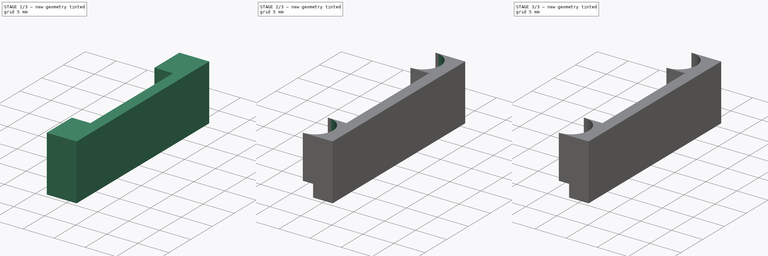
[diagram: build sequence overview — one tinted view per stage of 3, left to right]
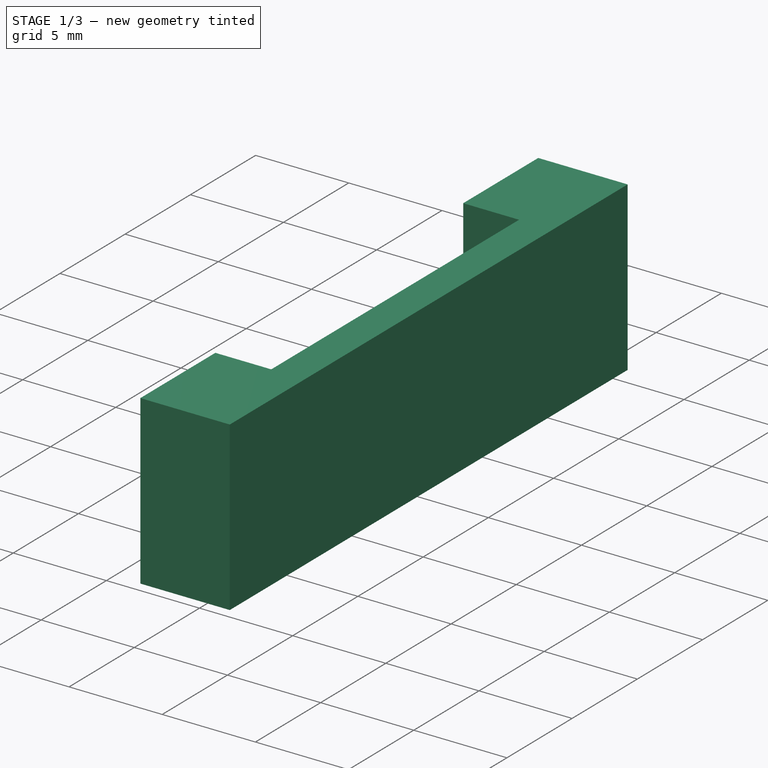
[diagram: stage 1 of 3 — iso view after this stage's code; geometry added in this stage tinted green]
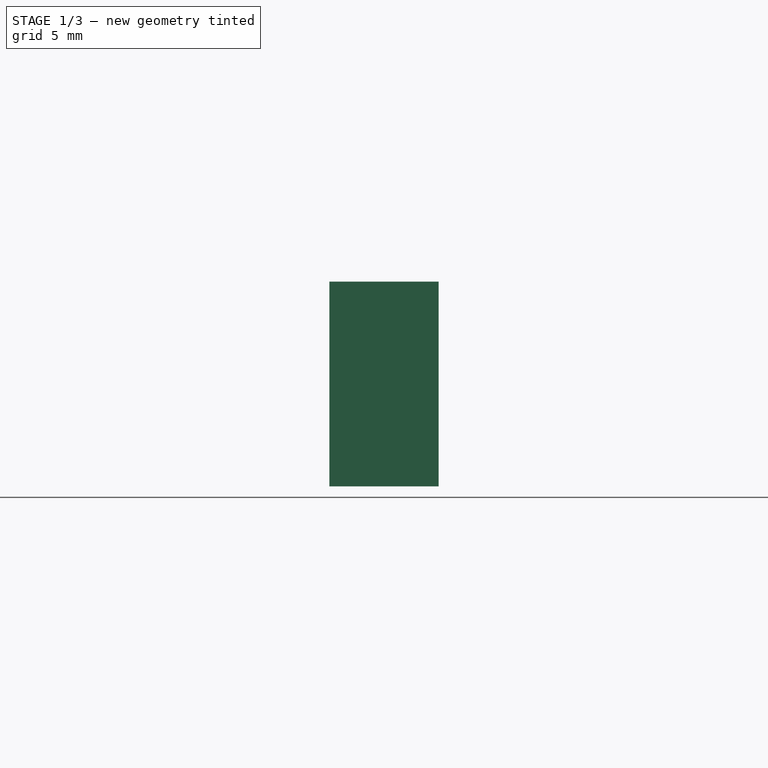
[diagram: stage 1 of 3 — front view after this stage's code; geometry added in this stage tinted green]
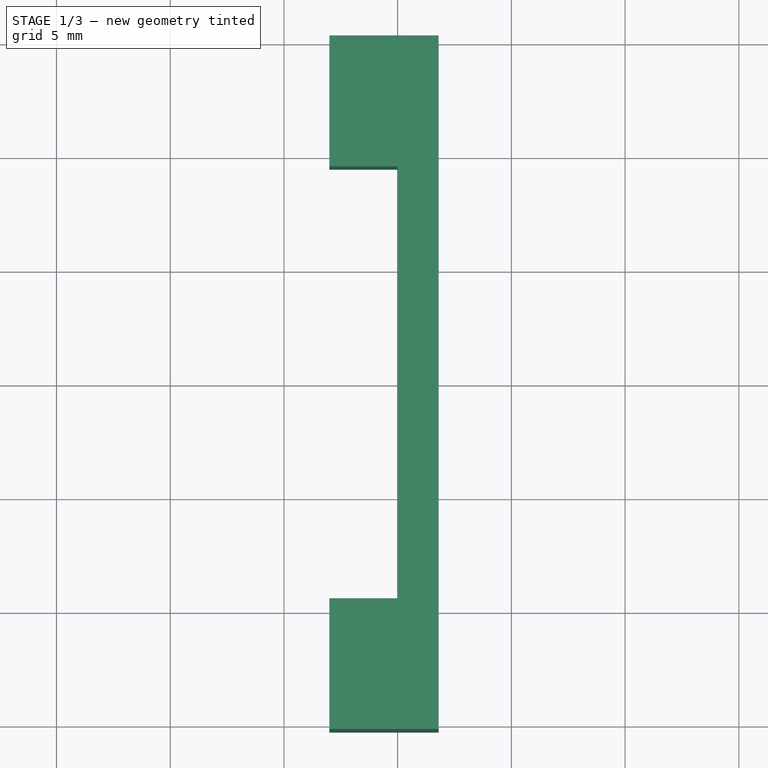
[diagram: stage 1 of 3 — top view after this stage's code; geometry added in this stage tinted green]
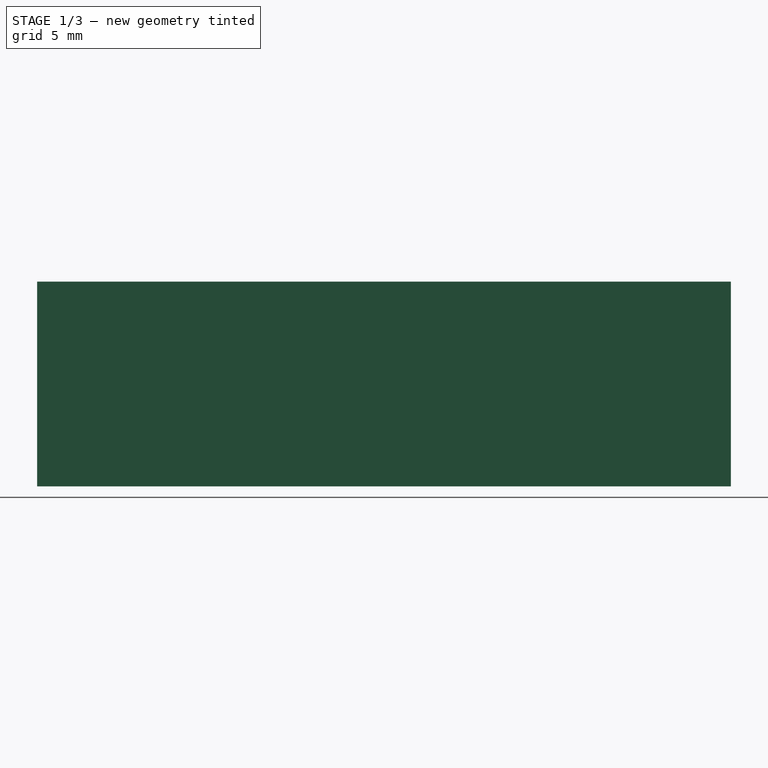
[diagram: stage 1 of 3 — right view after this stage's code; geometry added in this stage tinted green]
FCSTD DOCUMENT  (FreeCAD 0.18R15441 (Git))
Label: XEndstopClip2
License: All rights reserved
LicenseURL: http://en.wikipedia.org/wiki/All_rights_reserved
objects: Sketcher::SketchObject×6, PartDesign::Pad×3, PartDesign::Pocket×3, PartDesign::Plane×2, PartDesign::Body×1, Part::FeaturePython×1, App::Part×1
note: 22 computed .brp shape members not serialized (recipe doc carries the construction recipe); baked Part::Feature solids carry a one-line shape summary decoded from their .brp

FEATURE [Sketcher::SketchObject] Sketch  label="BaseSketch"
  MapMode = 5
  Placement = pos=(0,0,0) rot=(0.57735,0.57735,0.57735;2.0944rad)
  Support = -> [YZ_Plane001]
  sketch-geometry (4):
    g0: LineSegment StartX=-15.25 StartY=0 StartZ=0 EndX=15.25 EndY=0 EndZ=0
    g1: LineSegment StartX=15.25 StartY=0 StartZ=0 EndX=15.25 EndY=9 EndZ=0
    g2: LineSegment StartX=15.25 StartY=9 StartZ=0 EndX=-15.25 EndY=9 EndZ=0
    g3: LineSegment StartX=-15.25 StartY=9 StartZ=0 EndX=-15.25 EndY=0 EndZ=0
  constraints (11):
    c: Coincident(g0,g1)
    c: Coincident(g1,g2)
    c: Coincident(g2,g3)
    c: Coincident(g3,g0)
    c: Horizontal(g2)
    c: Vertical(g1)
    c: Vertical(g3)
    c: PointOnObject(g0,g-1)
    c: Symmetric(g0,g0,g-2)
    c: Distance(g3) = 9
    c: Distance(g2) = 30.5
FEATURE [PartDesign::Pad] Pad  label="BasePad"
  Length = 1.8
  Length2 = 100
  Placement = pos=(0,0,0) rot=(0.57735,0.57735,0.57735;2.0944rad)
  Profile = -> Sketch
  Type = 0
FEATURE [Sketcher::SketchObject] Sketch001  label="NutClipSketch"
  MapMode = 5
  Support = -> [XY_Plane001]
  sketch-geometry (8):
    g0: LineSegment StartX=0 StartY=-15.25 StartZ=0 EndX=-3 EndY=-15.25 EndZ=0
    g1: LineSegment StartX=-3 StartY=-15.25 StartZ=0 EndX=-3 EndY=-9.5 EndZ=0
    g2: LineSegment StartX=-3 StartY=-9.5 StartZ=0 EndX=0 EndY=-9.5 EndZ=0
    g3: LineSegment StartX=0 StartY=-9.5 StartZ=0 EndX=0 EndY=-15.25 EndZ=0
    g4: LineSegment StartX=0 StartY=15.25 StartZ=0 EndX=-3 EndY=15.25 EndZ=0
    g5: LineSegment StartX=-3 StartY=15.25 StartZ=0 EndX=-3 EndY=9.5 EndZ=0
    g6: LineSegment StartX=-3 StartY=9.5 StartZ=0 EndX=0 EndY=9.5 EndZ=0
    g7: LineSegment StartX=0 StartY=9.5 StartZ=0 EndX=0 EndY=15.25 EndZ=0
  constraints (23):
    c: Coincident(g0,g1)
    c: Coincident(g1,g2)
    c: Coincident(g2,g3)
    c: Coincident(g3,g0)
    c: Horizontal(g0)
    c: Horizontal(g2)
    c: Vertical(g1)
    c: Vertical(g3)
    c: PointOnObject(g0,g-2)
    c: Coincident(g4,g5)
    c: Coincident(g5,g6)
    c: Coincident(g6,g7)
    c: Coincident(g7,g4)
    c: Horizontal(g4)
    c: Horizontal(g6)
    c: Vertical(g5)
    c: Vertical(g7)
    c: Symmetric(g6,g2,g-1)
    c: Equal(g5,g1)
    c: Equal(g2,g6)
    c: Distance(g1,g5) = 19
    c: Distance(g5) = 5.75
    c: Distance(g2) = 3
FEATURE [PartDesign::Pad] Pad001  label="NutClipPad"
  BaseFeature = -> Pad
  Length = 9
  Length2 = 100
  Placement = pos=(0,0,0) rot=(0.57735,0.57735,0.57735;2.0944rad)
  Profile = -> Sketch001
  Type = 0
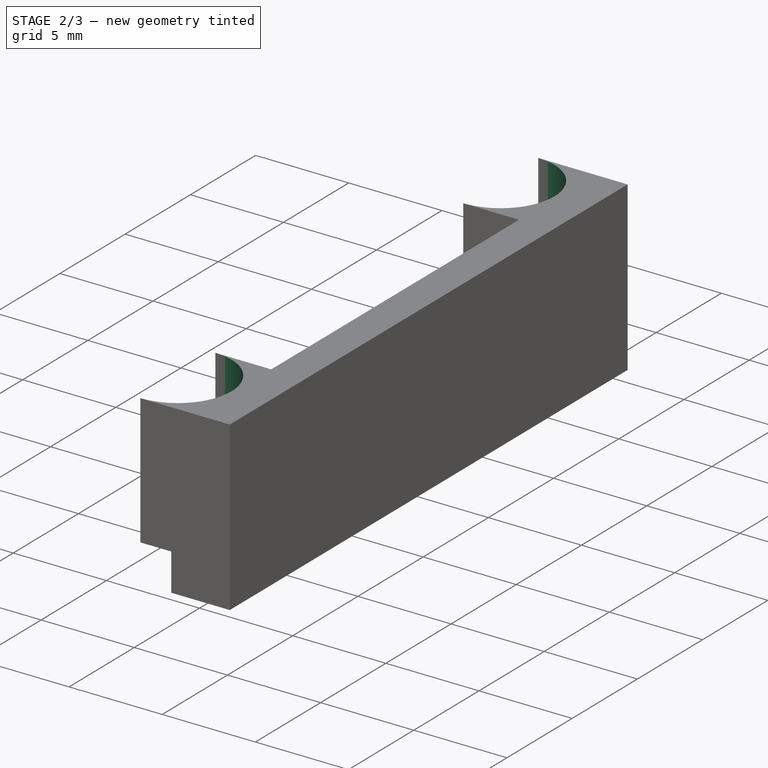
[diagram: stage 2 of 3 — iso view after this stage's code; geometry added in this stage tinted green]
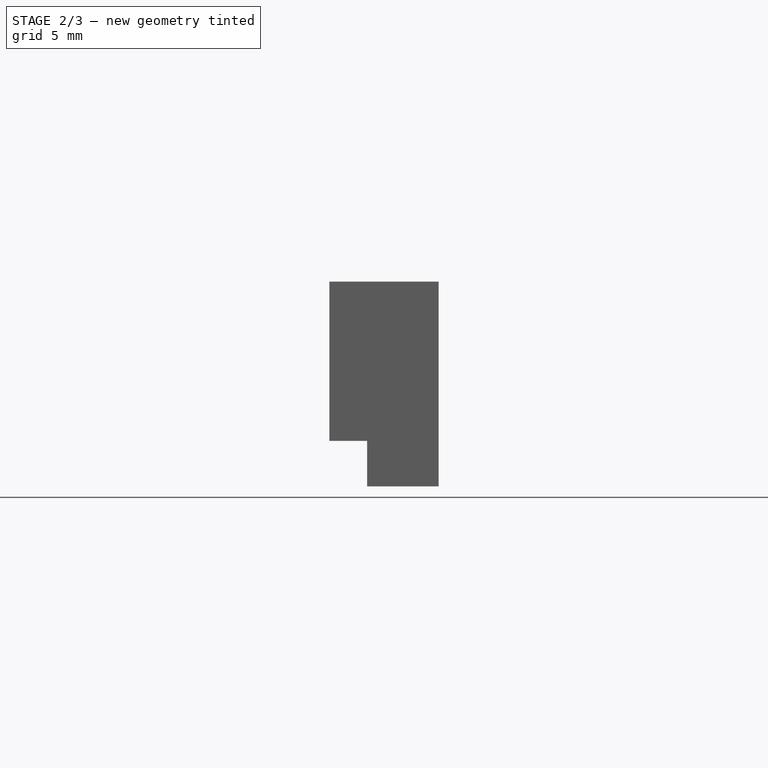
[diagram: stage 2 of 3 — front view after this stage's code; geometry added in this stage tinted green]
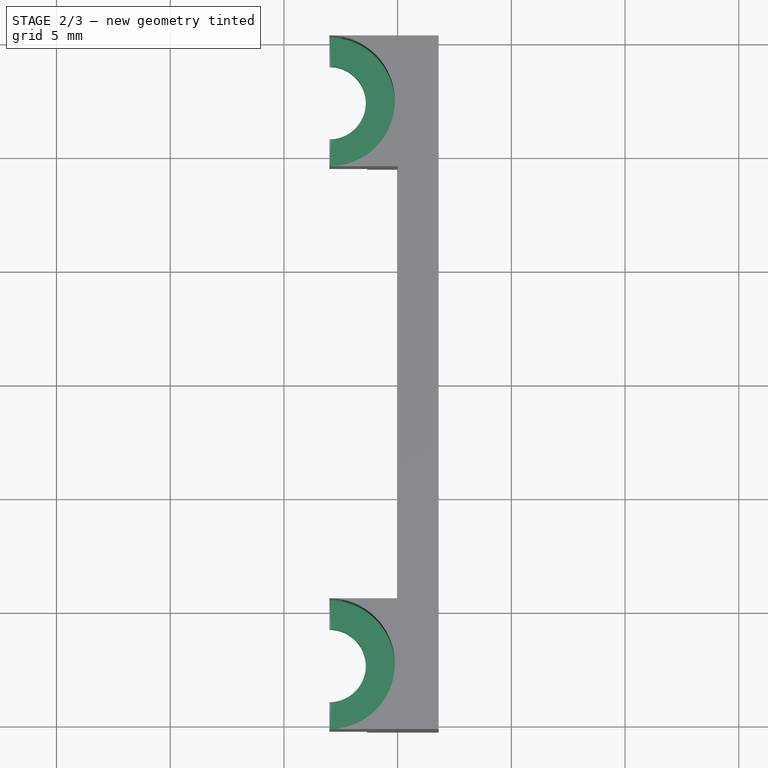
[diagram: stage 2 of 3 — top view after this stage's code; geometry added in this stage tinted green]
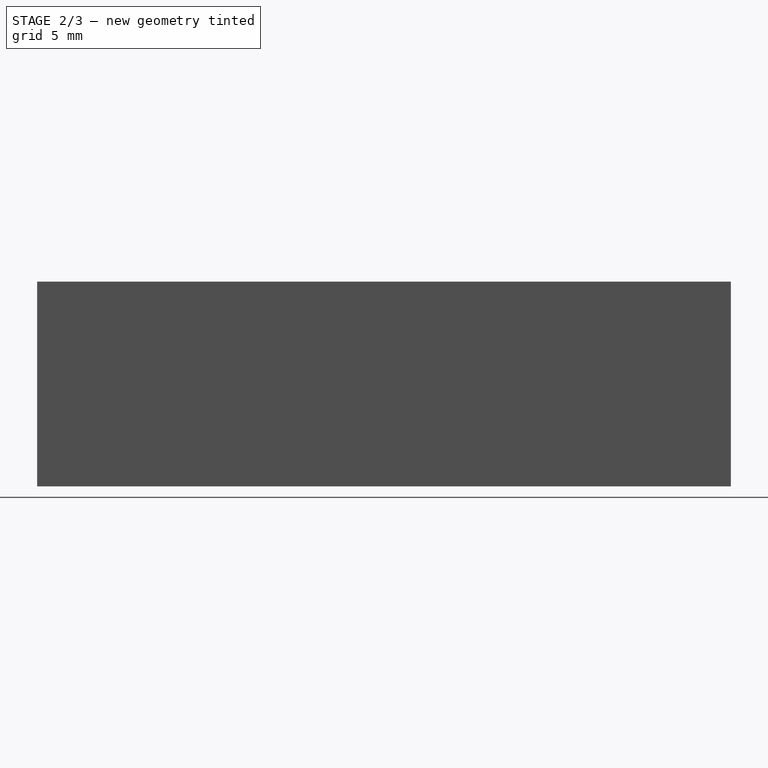
[diagram: stage 2 of 3 — right view after this stage's code; geometry added in this stage tinted green]
FEATURE [PartDesign::Plane] DatumPlane  label="NutClipPlane"
  AttachmentOffset = pos=(0,0,2) rot=(0,0,1;0rad)
  Length = 24.9396
  MapMode = 5
  Placement = pos=(0,0,2) rot=(0,0,1;0rad)
  ResizeMode = 0
  Support = -> [XY_Plane001]
  Width = 35.4396
FEATURE [Sketcher::SketchObject] Sketch002  label="NutCutSketch"
  ExternalGeometry = -> [Sketch001]
  MapMode = 5
  Placement = pos=(0,0,2) rot=(0,0,1;0rad)
  Support = -> [DatumPlane]
  sketch-geometry (16):
    g0: LineSegment StartX=-1.34012 StartY=9.5 StartZ=0 EndX=0.319764 EndY=12.375 EndZ=0
    g1: LineSegment StartX=0.319764 StartY=12.375 StartZ=0 EndX=-1.34012 EndY=15.25 EndZ=0
    g2: LineSegment StartX=-1.34012 StartY=15.25 StartZ=0 EndX=-4.65988 EndY=15.25 EndZ=0
    g3: LineSegment StartX=-4.65988 StartY=15.25 StartZ=0 EndX=-6.31976 EndY=12.375 EndZ=0
    g4: LineSegment StartX=-6.31976 StartY=12.375 StartZ=0 EndX=-4.65988 EndY=9.5 EndZ=0
    g5: LineSegment StartX=-4.65988 StartY=9.5 StartZ=0 EndX=-1.34012 EndY=9.5 EndZ=0
    g6: Circle [constr] CenterX=-3 CenterY=12.375 CenterZ=0 NormalX=0 NormalY=0 NormalZ=1 AngleXU=0 Radius=3.31976
    g7: LineSegment [constr] StartX=-3 StartY=15.25 StartZ=0 EndX=-3 EndY=12.375 EndZ=0
    g8: LineSegment [constr] StartX=-3 StartY=12.375 StartZ=0 EndX=-3 EndY=9.5 EndZ=0
    g9: LineSegment StartX=-1.34012 StartY=-15.25 StartZ=0 EndX=0.319764 EndY=-12.375 EndZ=0
    g10: LineSegment StartX=0.319764 StartY=-12.375 StartZ=0 EndX=-1.34012 EndY=-9.5 EndZ=0
    g11: LineSegment StartX=-1.34012 StartY=-9.5 StartZ=0 EndX=-4.65988 EndY=-9.5 EndZ=0
    g12: LineSegment StartX=-4.65988 StartY=-9.5 StartZ=0 EndX=-6.31976 EndY=-12.375 EndZ=0
    g13: LineSegment StartX=-6.31976 StartY=-12.375 StartZ=0 EndX=-4.65988 EndY=-15.25 EndZ=0
    g14: LineSegment StartX=-4.65988 StartY=-15.25 StartZ=0 EndX=-1.34012 EndY=-15.25 EndZ=0
    g15: Circle [constr] CenterX=-3 CenterY=-12.375 CenterZ=0 NormalX=0 NormalY=0 NormalZ=1 AngleXU=0 Radius=3.31976
  constraints (37):
    c: Coincident(g0,g1)
    c: Coincident(g1,g2)
    c: Coincident(g2,g3)
    c: Coincident(g3,g4)
    c: Coincident(g4,g5)
    c: Coincident(g5,g0)
    c: Equal(g0, g1-g5) x5
    c: PointOnObject(g0,g6)
    c: PointOnObject(g1,g6)
    c: PointOnObject(g2,g6)
    c: PointOnObject(g3,g6)
    c: PointOnObject(g4,g6)
    c: PointOnObject(g5,g6)
    c: Coincident(g7,g6)
    c: Coincident(g8,g6)
    c: Coincident(g8,g-3)
    c: Equal(g8,g7)
    c: Horizontal(g2)
    c: Coincident(g7,g-4)
    c: Vertical(g7)
    c: Distance(g2,g4) = 5.75
    c: Coincident(g9,g10)
    c: Coincident(g10,g11)
    c: Coincident(g11,g12)
    c: Coincident(g12,g13)
    c: Coincident(g13,g14)
    c: Coincident(g14,g9)
    c: Equal(g9, g10-g14) x5
    c: PointOnObject(g9,g15)
    c: PointOnObject(g10,g15)
    c: PointOnObject(g11,g15)
    c: PointOnObject(g12,g15)
    c: PointOnObject(g13,g15)
    c: PointOnObject(g14,g15)
    c: Symmetric(g15,g6,g-1)
    c: Horizontal(g11)
    c: Distance(g11,g13) = 5.75
FEATURE [PartDesign::Pocket] Pocket  label="NutClipPocket"
  BaseFeature = -> Pad001
  Length = 5
  Length2 = 100
  Placement = pos=(0,0,0) rot=(0.57735,0.57735,0.57735;2.0944rad)
  Profile = -> Sketch002
  Type = 1
FEATURE [Sketcher::SketchObject] Sketch003  label="ScewCutSketch"
  ExternalGeometry = -> [Sketch001]
  MapMode = 5
  Placement = pos=(0,0,2) rot=(0,0,1;0rad)
  Support = -> [DatumPlane]
  sketch-geometry (4):
    g0: Circle CenterX=-3 CenterY=12.375 CenterZ=0 NormalX=0 NormalY=0 NormalZ=1 AngleXU=0 Radius=1.6
    g1: LineSegment [constr] StartX=-3 StartY=15.25 StartZ=0 EndX=-3 EndY=12.375 EndZ=0
    g2: LineSegment [constr] StartX=-3 StartY=12.375 StartZ=0 EndX=-3 EndY=9.5 EndZ=0
    g3: Circle CenterX=-3 CenterY=-12.375 CenterZ=0 NormalX=0 NormalY=0 NormalZ=1 AngleXU=0 Radius=1.6
  constraints (9):
    c: Coincident(g1,g-3)
    c: Coincident(g1,g0)
    c: Coincident(g2,g0)
    c: Coincident(g2,g-4)
    c: Equal(g2,g1)
    c: Vertical(g1)
    c: Radius(g0) = 1.6
    c: Equal(g3,g0)
    c: Symmetric(g3,g0,g-1)
FEATURE [PartDesign::Pocket] Pocket001  label="ScewCutPocket"
  BaseFeature = -> Pocket
  Length = 5
  Length2 = 100
  Placement = pos=(0,0,0) rot=(0.57735,0.57735,0.57735;2.0944rad)
  Profile = -> Sketch003
  Reversed = true
  Type = 1
FEATURE [PartDesign::Plane] DatumPlane001  label="ScewTopPlane"
  AttachmentOffset = pos=(0,0,9) rot=(0,0,1;0rad)
  Length = 24.9396
  MapMode = 5
  Placement = pos=(0,0,9) rot=(0,0,1;0rad)
  ResizeMode = 0
  Support = -> [XY_Plane001]
  Width = 35.4396
FEATURE [Sketcher::SketchObject] Sketch004  label="ScrewTopSketch"
  ExternalGeometry = -> [Sketch003]
  MapMode = 5
  Placement = pos=(0,0,9) rot=(0,0,1;0rad)
  Support = -> [DatumPlane001]
  sketch-geometry (2):
    g0: Circle CenterX=-3 CenterY=12.375 CenterZ=0 NormalX=0 NormalY=0 NormalZ=1 AngleXU=0 Radius=2.875
    g1: Circle CenterX=-3 CenterY=-12.375 CenterZ=0 NormalX=0 NormalY=0 NormalZ=1 AngleXU=0 Radius=2.875
  constraints (4):
    c: Coincident(g0,g-3)
    c: Coincident(g1,g-4)
    c: Equal(g0,g1)
    c: Radius(g0) = 2.875
FEATURE [PartDesign::Pocket] Pocket002  label="ScrewTopPocket"
  BaseFeature = -> Pocket001
  Length = 5.4
  Length2 = 100
  Placement = pos=(0,0,0) rot=(0.57735,0.57735,0.57735;2.0944rad)
  Profile = -> Sketch004
  Type = 0
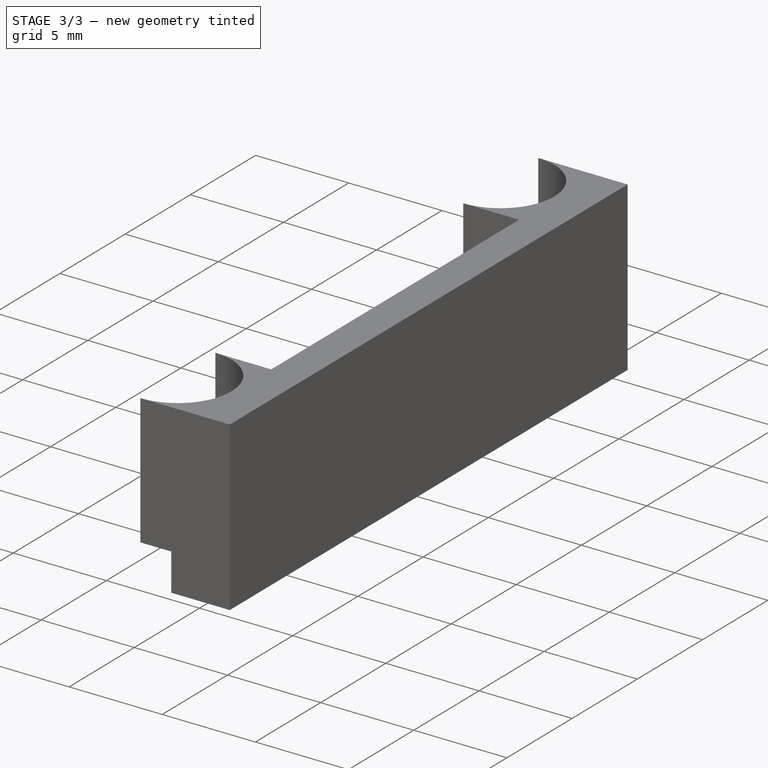
[diagram: stage 3 of 3 — iso view after this stage's code; geometry added in this stage tinted green]
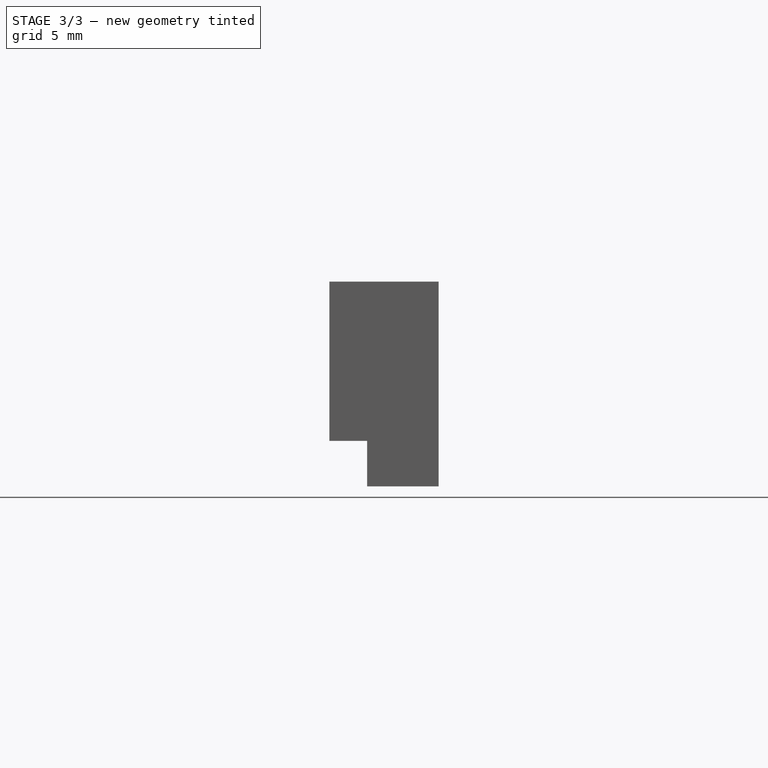
[diagram: stage 3 of 3 — front view after this stage's code; geometry added in this stage tinted green]
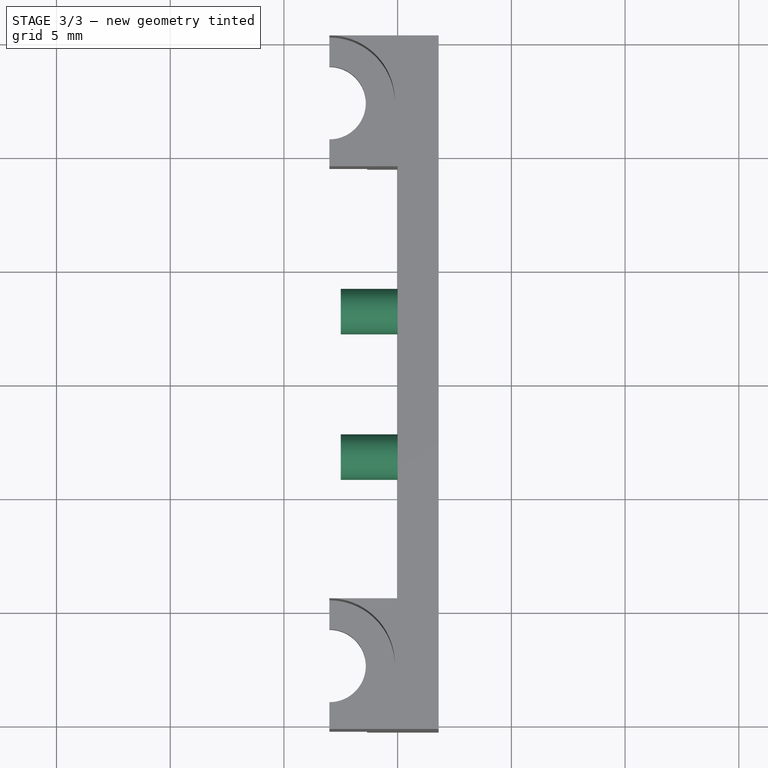
[diagram: stage 3 of 3 — top view after this stage's code; geometry added in this stage tinted green]
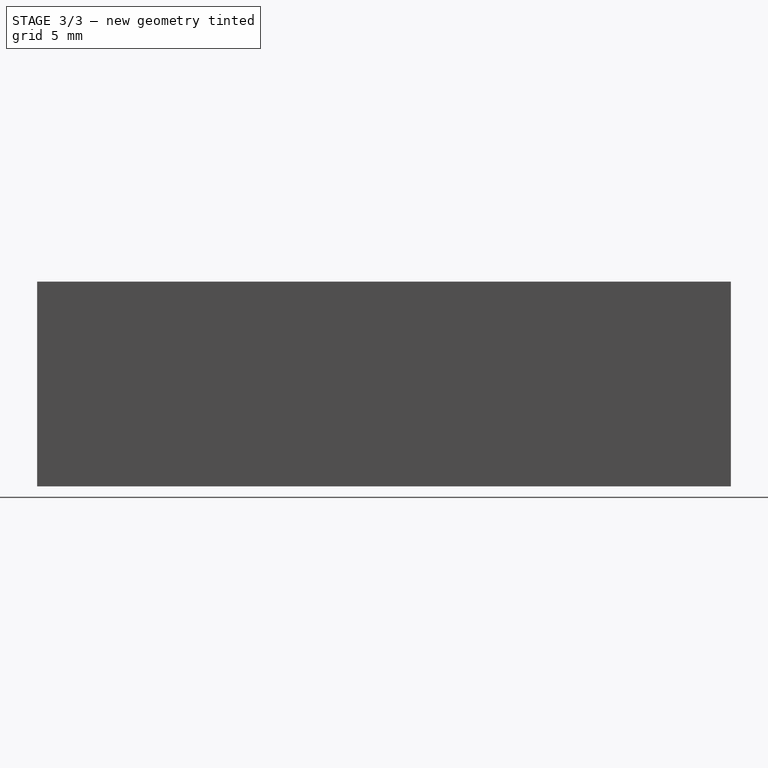
[diagram: stage 3 of 3 — right view after this stage's code; geometry added in this stage tinted green]
FEATURE [Sketcher::SketchObject] Sketch005  label="EndstopClipSketch"
  MapMode = 5
  Placement = pos=(0,0,0) rot=(0.57735,0.57735,0.57735;2.0944rad)
  Support = -> [YZ_Plane001]
  sketch-geometry (2):
    g0: Circle CenterX=-3.2 CenterY=3.5 CenterZ=0 NormalX=0 NormalY=0 NormalZ=1 AngleXU=0 Radius=1
    g1: Circle CenterX=3.2 CenterY=3.5 CenterZ=0 NormalX=0 NormalY=0 NormalZ=1 AngleXU=0 Radius=1
  constraints (5):
    c: Symmetric(g0,g1,g-2)
    c: DistanceY(g-1,g0) = 3.5
    c: Equal(g0,g1)
    c: Radius(g0) = 1
    c: Distance(g0,g1) = 6.4
FEATURE [PartDesign::Pad] Pad002  label="EndstopClipPad"
  BaseFeature = -> Pocket002
  Length = 2.5
  Length2 = 100
  Placement = pos=(0,0,0) rot=(0.57735,0.57735,0.57735;2.0944rad)
  Profile = -> Sketch005
  Reversed = true
  Type = 0
FEATURE [PartDesign::Body] Body  label="ClipBody"
  Group = -> [Sketch,Pad,Sketch001,Pad001,Sketch002,DatumPlane,Pocket,Sketch003,Pocket001,DatumPlane001,Sketch004,Pocket002,Sketch005,Pad002]
  Origin = -> Origin001
  Tip = -> Pad002
FEATURE [Part::FeaturePython] refine  label="ClipBody_Refined"  # WARN: FeaturePython — macro-defined, semantics opaque (R4)
  Base = -> Body
FEATURE [App::Part] Part  label="XEndstopClip2Part"
  Group = -> [Body,refine]
  License = CC BY 3.0
  LicenseURL = http://creativecommons.org/licenses/by/3.0/
  Origin = -> Origin
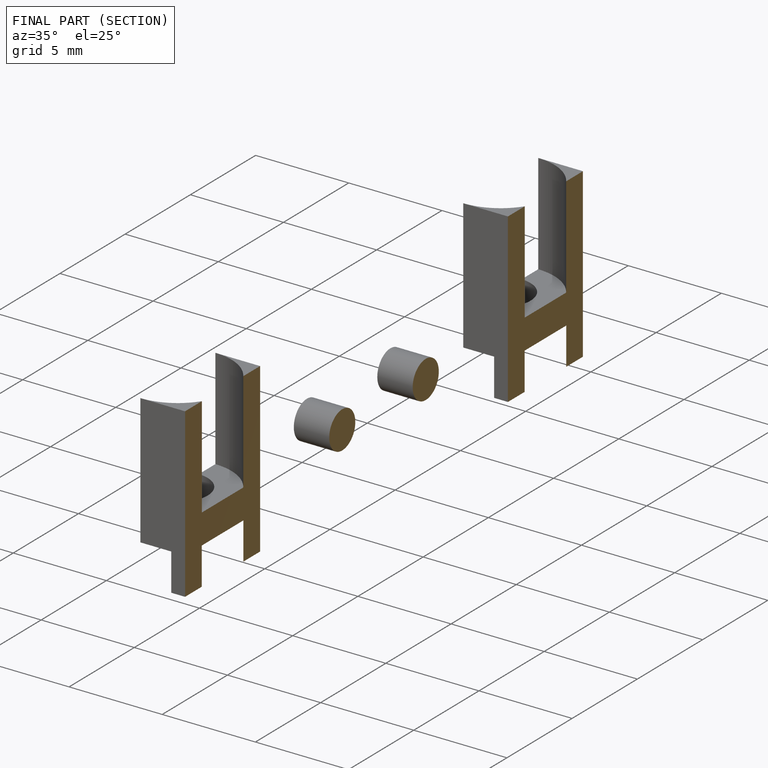
[diagram: finished part — half-section view (interior)]
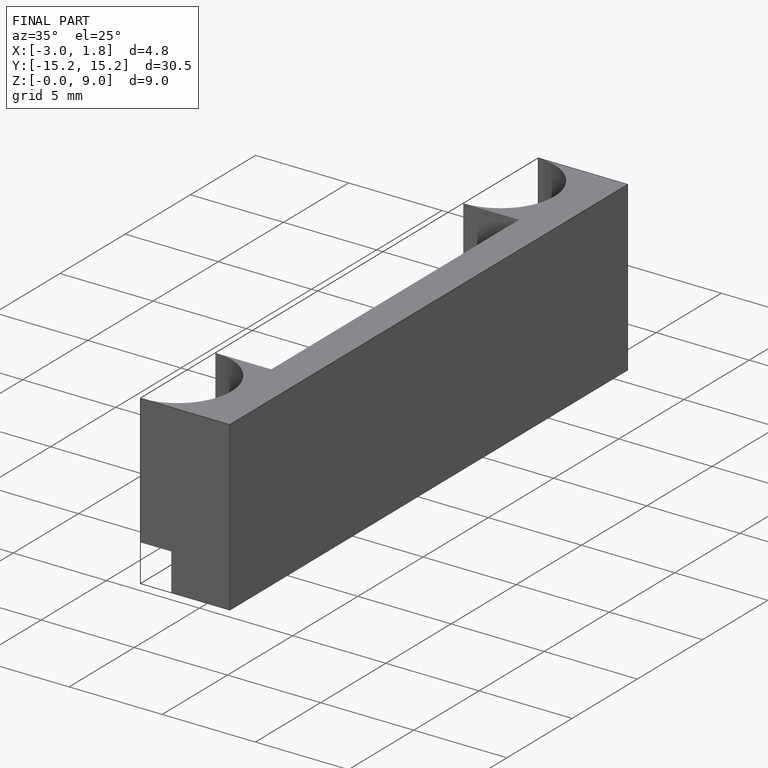
[diagram: finished part — iso view with bounding-box wireframe]
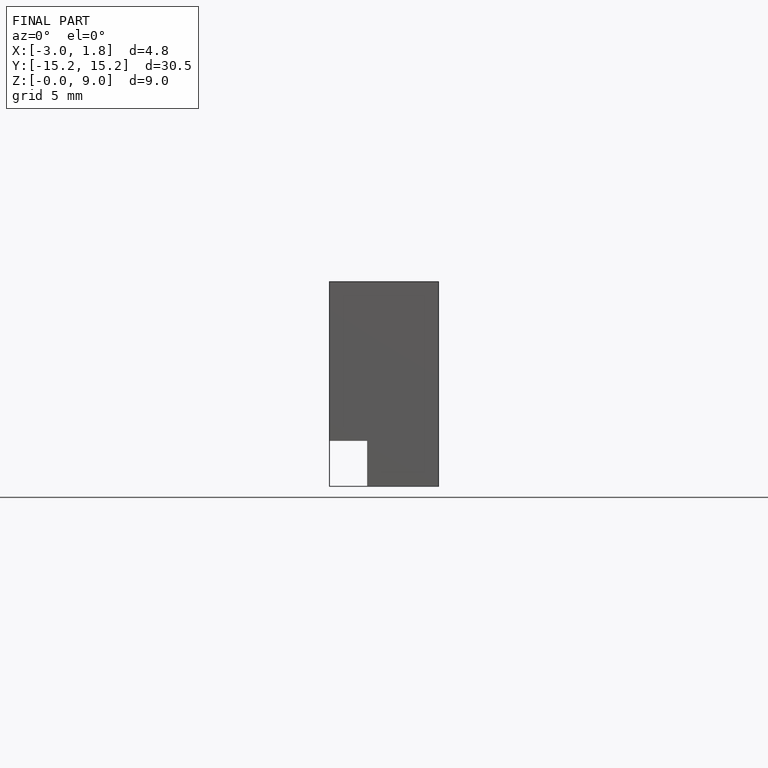
[diagram: finished part — front view with bounding-box wireframe]
